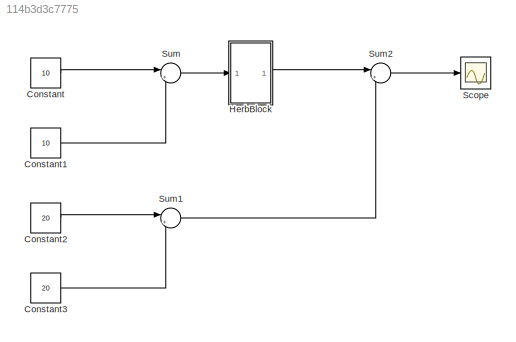
MODEL slx_114b3d3c7775
KIND model
CONFIG AbsTol = auto
CONFIG FixedStep = auto
CONFIG MaxStep = auto
CONFIG MinStep = auto
CONFIG RelTol = 1e-3
CONFIG SampleTimeConstraint = Unconstrained
CONFIG Solver = ode45
CONFIG SolverMode = Auto
CONFIG SolverName = ode45
CONFIG StartTime = 0.0
CONFIG StopTime = 10.0
BLOCK [Constant] Constant
  Value = 10
BLOCK [Constant] Constant1
  Value = 10
BLOCK [Constant] Constant2
  Value = 20
BLOCK [Constant] Constant3
  Value = 20
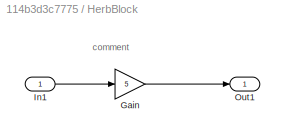
BLOCK [SubSystem] HerbBlock
  Ports = [1, 1]
  RequestExecContextInheritance = off
BLOCK [Gain] HerbBlock/Gain
  Gain = 5
  OutDataTypeStr = Inherit: Inherit via internal rule
  ParamDataTypeStr = Inherit: Inherit via internal rule
  SaturateOnIntegerOverflow = off
BLOCK [Inport] HerbBlock/In1
  IconDisplay = Port number
BLOCK [Outport] HerbBlock/Out1
  IconDisplay = Port number
BLOCK [Scope] Scope
  Floating = off
  NumInputPorts = 1
  Ports = [1]
BLOCK [Sum] Sum
  IconShape = round
  InputSameDT = off
  Inputs = |++
  OutDataTypeStr = Inherit: Inherit via internal rule
  Ports = [2, 1]
  SaturateOnIntegerOverflow = off
BLOCK [Sum] Sum1
  IconShape = round
  InputSameDT = off
  Inputs = |++
  OutDataTypeStr = Inherit: Inherit via internal rule
  Ports = [2, 1]
  SaturateOnIntegerOverflow = off
BLOCK [Sum] Sum2
  IconShape = round
  InputSameDT = off
  Inputs = |++
  OutDataTypeStr = Inherit: Inherit via internal rule
  Ports = [2, 1]
  SaturateOnIntegerOverflow = off
ANNOTATION HerbBlock: comment
LINE Constant1:1 -> Sum:2
LINE Constant2:1 -> Sum1:1
LINE Constant3:1 -> Sum1:2
LINE Constant:1 -> Sum:1
LINE HerbBlock/Gain:1 -> HerbBlock/Out1:1
LINE HerbBlock/In1:1 -> HerbBlock/Gain:1
LINE HerbBlock:1 -> Sum2:1
LINE Sum1:1 -> Sum2:2
LINE Sum2:1 -> Scope:1
LINE Sum:1 -> HerbBlock:1
